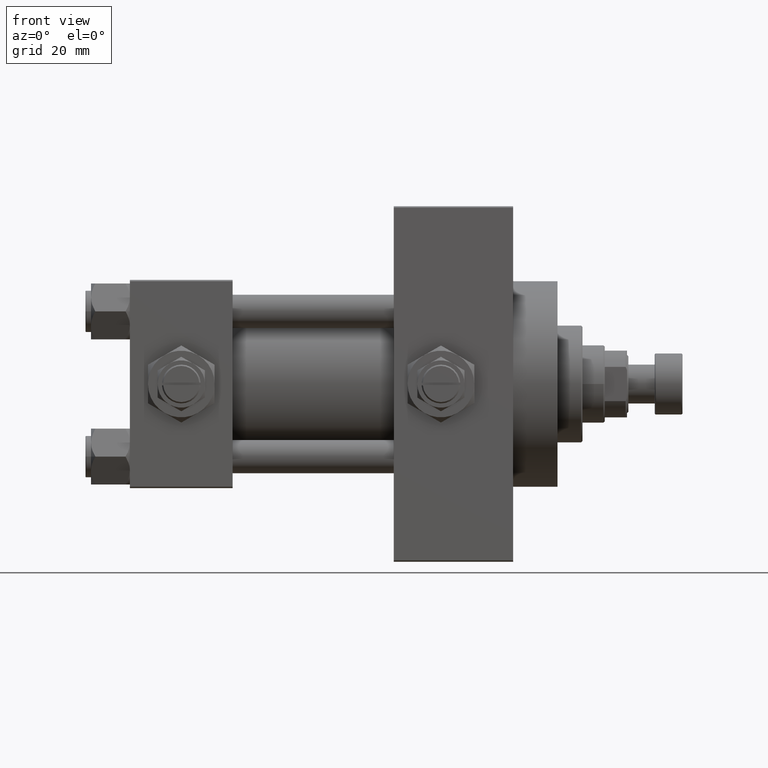
[diagram: clean part render]
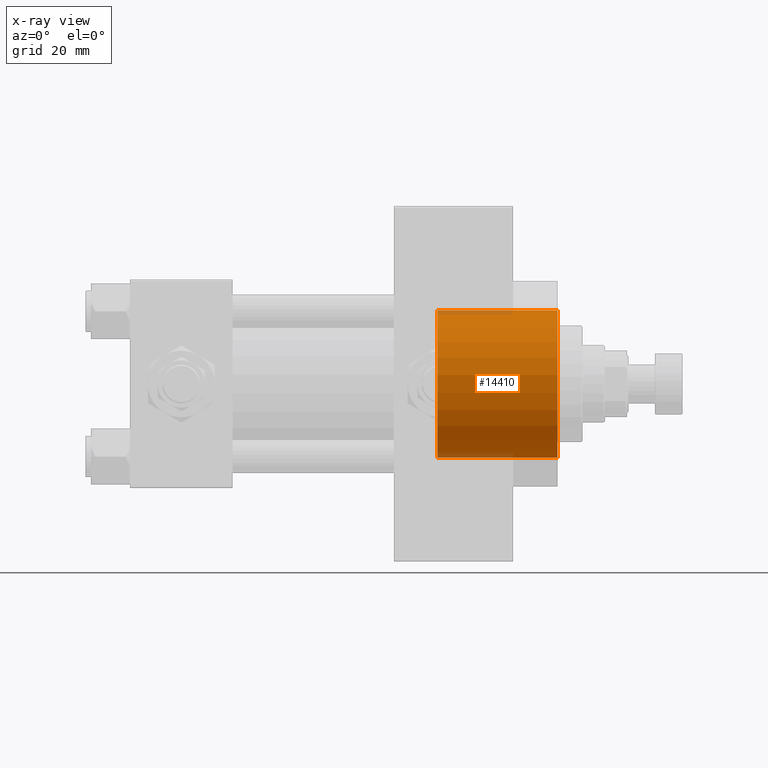
[diagram: x-ray — body ghosted, one internal face saturated and labeled with its STEP entity id]
A machine part, front view, then the same camera in x-ray: the body is ghosted and one INTERNAL B-rep face — a face not visible from any outside direction — is saturated and labeled: STEP entity #14410.
In plain terms, the highlighted cylindrical surface (partial cylindrical patch) has radius 26.5 mm, axis along (-1, 0, 0).
Its self-contained STEP definition (entity closure, byte-faithful):
#973 = ORIENTED_EDGE ( 'NONE', *, *, #12266, .F. ) ;
#2688 = VECTOR ( 'NONE', #41964, 1000.000000000000000 ) ;
#2994 = CARTESIAN_POINT ( 'NONE',  ( 0.000000000000000000, 0.000000000000000000, 0.000000000000000000 ) ) ;
#4215 = VECTOR ( 'NONE', #25346, 1000.000000000000000 ) ;
#5078 = VERTEX_POINT ( 'NONE', #36527 ) ;
#9195 = CARTESIAN_POINT ( 'NONE',  ( 26.50000000000000355, 3.245314017740486554E-15, 43.25999999999999801 ) ) ;
#9975 = LINE ( 'NONE', #37133, #4215 ) ;
#12266 = EDGE_CURVE ( 'NONE', #12443, #25195, #44079, .T. ) ;
#12443 = VERTEX_POINT ( 'NONE', #9195 ) ;
#14179 = CARTESIAN_POINT ( 'NONE',  ( -26.50000000000000355, 0.000000000000000000, 43.25999999999999801 ) ) ;
#14410 = ADVANCED_FACE ( 'NONE', ( #27280 ), #42602, .T. ) ;
#15187 = EDGE_CURVE ( 'NONE', #5078, #46265, #40196, .T. ) ;
#15951 = DIRECTION ( 'NONE',  ( -0.000000000000000000, -0.000000000000000000, -1.000000000000000000 ) ) ;
#18371 = ORIENTED_EDGE ( 'NONE', *, *, #20125, .T. ) ;
#18812 = DIRECTION ( 'NONE',  ( 0.000000000000000000, 0.000000000000000000, 1.000000000000000000 ) ) ;
#19081 = LINE ( 'NONE', #34168, #2688 ) ;
#20125 = EDGE_CURVE ( 'NONE', #12443, #5078, #9975, .T. ) ;
#22344 = DIRECTION ( 'NONE',  ( -1.000000000000000000, 0.000000000000000000, 0.000000000000000000 ) ) ;
#22408 = AXIS2_PLACEMENT_3D ( 'NONE', #30355, #33631, #45696 ) ;
#24958 = AXIS2_PLACEMENT_3D ( 'NONE', #38826, #15951, #22344 ) ;
#25195 = VERTEX_POINT ( 'NONE', #14179 ) ;
#25346 = DIRECTION ( 'NONE',  ( -0.000000000000000000, -0.000000000000000000, -1.000000000000000000 ) ) ;
#26134 = DIRECTION ( 'NONE',  ( 1.000000000000000000, 0.000000000000000000, 0.000000000000000000 ) ) ;
#26519 = CARTESIAN_POINT ( 'NONE',  ( -26.50000000000000355, 0.000000000000000000, 0.000000000000000000 ) ) ;
#27280 = FACE_OUTER_BOUND ( 'NONE', #36035, .T. ) ;
#30355 = CARTESIAN_POINT ( 'NONE',  ( 0.000000000000000000, 0.000000000000000000, 43.25999999999999801 ) ) ;
#33631 = DIRECTION ( 'NONE',  ( 0.000000000000000000, 0.000000000000000000, 1.000000000000000000 ) ) ;
#34168 = CARTESIAN_POINT ( 'NONE',  ( -26.50000000000000355, 0.000000000000000000, 43.25999999999999801 ) ) ;
#36035 = EDGE_LOOP ( 'NONE', ( #973, #18371, #37264, #43736 ) ) ;
#36527 = CARTESIAN_POINT ( 'NONE',  ( 26.50000000000000355, 3.245314017740486554E-15, 0.000000000000000000 ) ) ;
#37133 = CARTESIAN_POINT ( 'NONE',  ( 26.50000000000000355, 3.245314017740486554E-15, 43.25999999999999801 ) ) ;
#37264 = ORIENTED_EDGE ( 'NONE', *, *, #15187, .T. ) ;
#37363 = EDGE_CURVE ( 'NONE', #25195, #46265, #19081, .T. ) ;
#38826 = CARTESIAN_POINT ( 'NONE',  ( 0.000000000000000000, 0.000000000000000000, 43.25999999999999801 ) ) ;
#40196 = CIRCLE ( 'NONE', #46613, 26.50000000000000355 ) ;
#41964 = DIRECTION ( 'NONE',  ( -0.000000000000000000, -0.000000000000000000, -1.000000000000000000 ) ) ;
#42602 = CYLINDRICAL_SURFACE ( 'NONE', #24958, 26.50000000000000355 ) ;
#43736 = ORIENTED_EDGE ( 'NONE', *, *, #37363, .F. ) ;
#44079 = CIRCLE ( 'NONE', #22408, 26.50000000000000355 ) ;
#45696 = DIRECTION ( 'NONE',  ( 1.000000000000000000, 0.000000000000000000, 0.000000000000000000 ) ) ;
#46265 = VERTEX_POINT ( 'NONE', #26519 ) ;
#46613 = AXIS2_PLACEMENT_3D ( 'NONE', #2994, #18812, #26134 ) ;